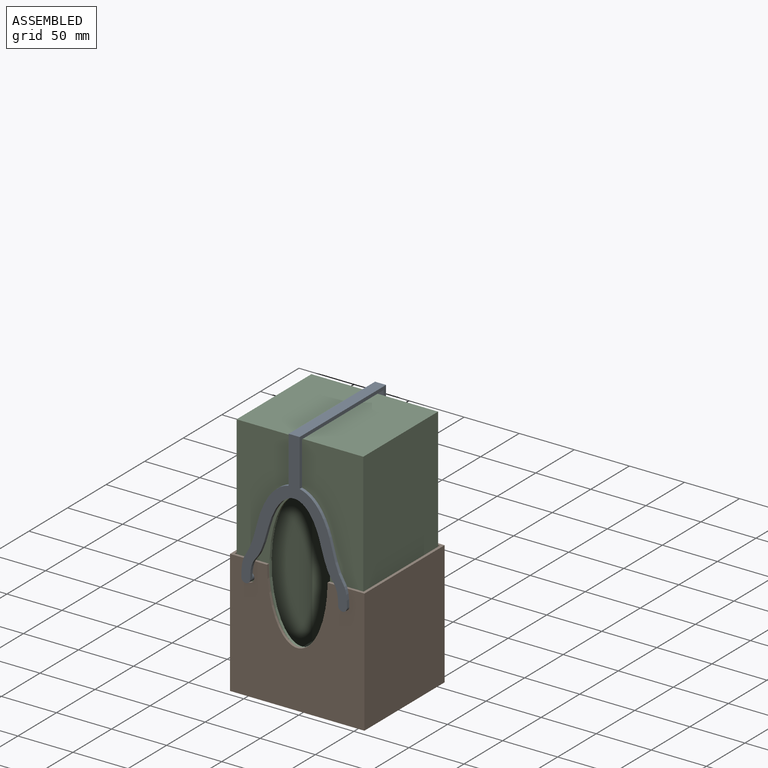
[diagram: assembled view]
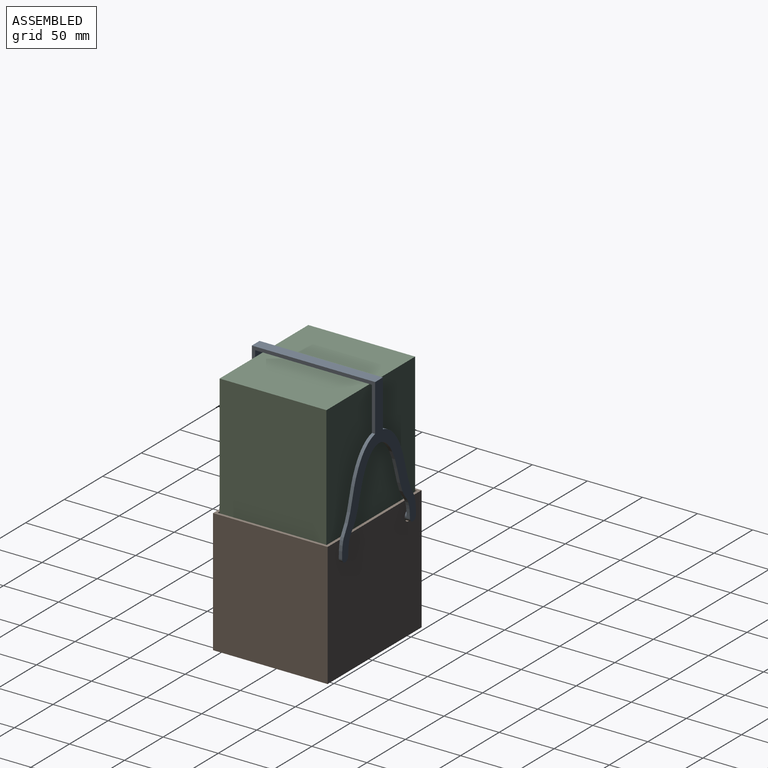
[diagram: assembled view, second angle]
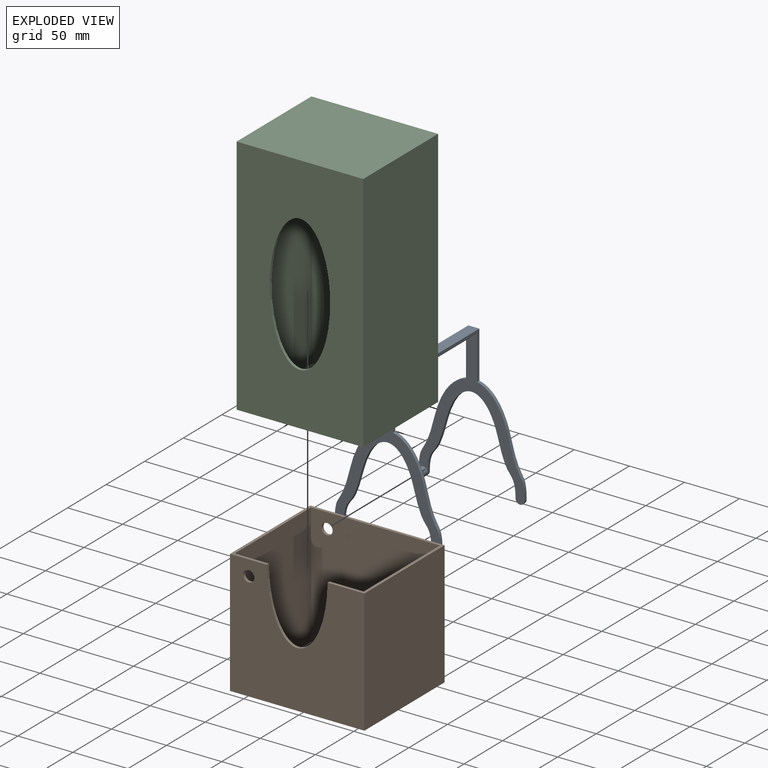
[diagram: exploded view]
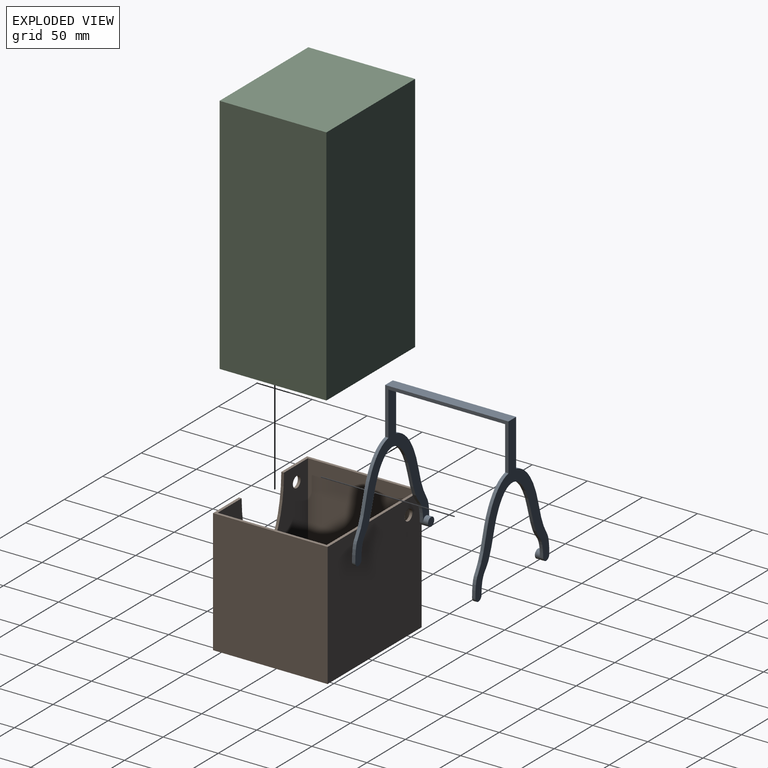
[diagram: exploded view, second angle]
ASSEMBLY  parts=3 mates=2
PART A: 28 faces, bbox 95.9x112x132.9 mm
  f0: cylinder r=4mm len=8mm, axis (0,1,0), area 150.8mm2, adj f1,f14,f20,f22,f25
  f1: plane 8x8mm, normal (0,-1,0), area 50.3mm2, adj f0
  f2: extruded ~46.93x14.08mm, area 148.8mm2, adj f6,f7,f13,f24
  f3: extruded ~46.93x14.08mm, area 148.8mm2, adj f10,f12,f13,f24
  f4: extruded ~47.11x30mm, area 243.6mm2, adj f5,f8,f13,f24
  f5: extruded ~46.93x16.39mm, area 151.4mm2, adj f4,f6,f13,f24
  f6: cylinder r=4mm len=8mm, axis (0,1,0), area 37.7mm2, adj f2,f5,f13,f24
  f7: extruded ~39.43x28.87mm, area 154mm2, adj f2,f9,f13,f24
  f8: extruded ~46.93x16.39mm, area 151.4mm2, adj f4,f10,f13,f24
  f9: plane 112x42.57mm, normal (1,0,0), area 573.4mm2, adj f7,f13,f14,f19,f21,f24,f25,f26
  f10: cylinder r=4mm len=8mm, axis (0,1,0), area 150.8mm2, adj f3,f8,f13,f24,f27
  f11: plane 112x42.57mm, normal (-1,0,0), area 573.4mm2, adj f12,f13,f14,f21,f23,f24,f25,f26
  f12: extruded ~39.43x28.87mm, area 154mm2, adj f3,f11,f13,f24
  f13: plane 132.93x95.9mm, normal (0,-1,0), area 2334.5mm2, adj f2,f3,f4,f5,f6,f7,f8,f9
  f14: plane 132.93x95.9mm, normal (0,1,0), area 2334.5mm2, adj f0,f9,f11,f15,f16,f17,f18,f19
  f15: extruded ~47.11x30mm, area 243.6mm2, adj f14,f16,f20,f25
  f16: extruded ~46.93x16.39mm, area 151.4mm2, adj f14,f15,f17,f25
  f17: cylinder r=4mm len=8mm, axis (0,1,0), area 37.7mm2, adj f14,f16,f18,f25
  f18: extruded ~46.93x14.08mm, area 148.8mm2, adj f14,f17,f19,f25
  f19: extruded ~39.43x28.87mm, area 154mm2, adj f9,f14,f18,f25
  f20: extruded ~46.93x16.39mm, area 151.4mm2, adj f0,f14,f15,f25
  f21: plane 112x10mm, normal (0,0,1), area 1120mm2, adj f9,f11,f13,f14
  f22: extruded ~46.93x14.08mm, area 148.8mm2, adj f0,f14,f23,f25
  f23: extruded ~39.43x28.87mm, area 154mm2, adj f11,f14,f22,f25
  f24: plane 129.93x95.9mm, normal (0,1,0), area 2254.2mm2, adj f2,f3,f4,f5,f6,f7,f8,f9
  f25: plane 129.93x95.9mm, normal (0,-1,0), area 2254.2mm2, adj f0,f9,f11,f15,f16,f17,f18,f19
  f26: plane 106x10mm, normal (0,0,-1), area 1060mm2, adj f9,f11,f24,f25
  f27: plane 8x8mm, normal (0,1,0), area 50.3mm2, adj f10
PART B: 14 faces, bbox 122x104x112.5 mm
  f0: plane 122x104mm, normal (0,0,1), area 967.5mm2, adj f1,f2,f3,f4,f6,f7,f8,f9
  f1: plane 122x112.5mm, normal (0,-1,0), area 11023.3mm2, adj f0,f2,f4,f5,f11,f13
  f2: plane 112.5x104mm, normal (-1,0,0), area 11700mm2, adj f0,f1,f3,f5
  f3: plane 122x112.5mm, normal (0,1,0), area 13646.5mm2, adj f0,f2,f4,f5,f12
  f4: plane 112.5x104mm, normal (1,0,0), area 11700mm2, adj f0,f1,f3,f5
  f5: plane 122x104mm, normal (0,0,-1), area 12688mm2, adj f1,f2,f3,f4
  f6: plane 117x110mm, normal (0,1,0), area 10168.3mm2, adj f0,f7,f9,f10,f11,f13
  f7: plane 110x99mm, normal (1,0,0), area 10890mm2, adj f0,f6,f8,f10
  f8: plane 117x110mm, normal (0,-1,0), area 12791.5mm2, adj f0,f7,f9,f10,f12
  f9: plane 110x99mm, normal (-1,0,0), area 10890mm2, adj f0,f6,f8,f10
  f10: plane 117x99mm, normal (0,0,1), area 11583mm2, adj f6,f7,f8,f9
  f11: extruded ~61x54.99mm, area 359.6mm2, adj f0,f1,f6
  f12: cylinder r=5mm len=10mm, axis (0,-1,0), area 78.5mm2, adj f3,f8
  f13: cylinder r=5mm len=10mm, axis (0,-1,0), area 78.5mm2, adj f1,f6
PART C: 13 faces, bbox 115x97x220 mm
  f0: plane 215x110mm, normal (0,1,0), area 18293.6mm2, adj f1,f3,f4,f5,f6
  f1: plane 215x92mm, normal (-1,0,0), area 19780mm2, adj f0,f2,f4,f5
  f2: plane 215x110mm, normal (0,-1,0), area 23650mm2, adj f1,f3,f4,f5
  f3: plane 215x92mm, normal (1,0,0), area 19780mm2, adj f0,f2,f4,f5
  f4: plane 110x92mm, normal (0,0,-1), area 10120mm2, adj f0,f1,f2,f3
  f5: plane 110x92mm, normal (0,0,1), area 10120mm2, adj f0,f1,f2,f3
  f6: extruded ~124x55mm, area 729.3mm2, adj f0,f7
  f7: plane 220x115mm, normal (0,-1,0), area 19943.6mm2, adj f6,f8,f10,f11,f12
  f8: plane 220x97mm, normal (1,0,0), area 21340mm2, adj f7,f9,f11,f12
  f9: plane 220x115mm, normal (0,1,0), area 25300mm2, adj f8,f10,f11,f12
  f10: plane 220x97mm, normal (-1,0,0), area 21340mm2, adj f7,f9,f11,f12
  f11: plane 115x97mm, normal (0,0,1), area 11155mm2, adj f7,f8,f9,f10
  f12: plane 115x97mm, normal (0,0,-1), area 11155mm2, adj f7,f8,f9,f10
PLACE A rot(axis=(0,-1,0),0deg) t=(0,0,3.5)mm
PLACE B t=(0,0,3.5)mm
PLACE C t=(0,0,2.5)mm
MATE fastened C.f12 <-> B.f10  axis (0,0,-1) through (0,0,2.5)mm
MATE revolute A.f0 <-> B.f12  axis (0,-1,0) through (-43.95,48.5,98.57)mm
